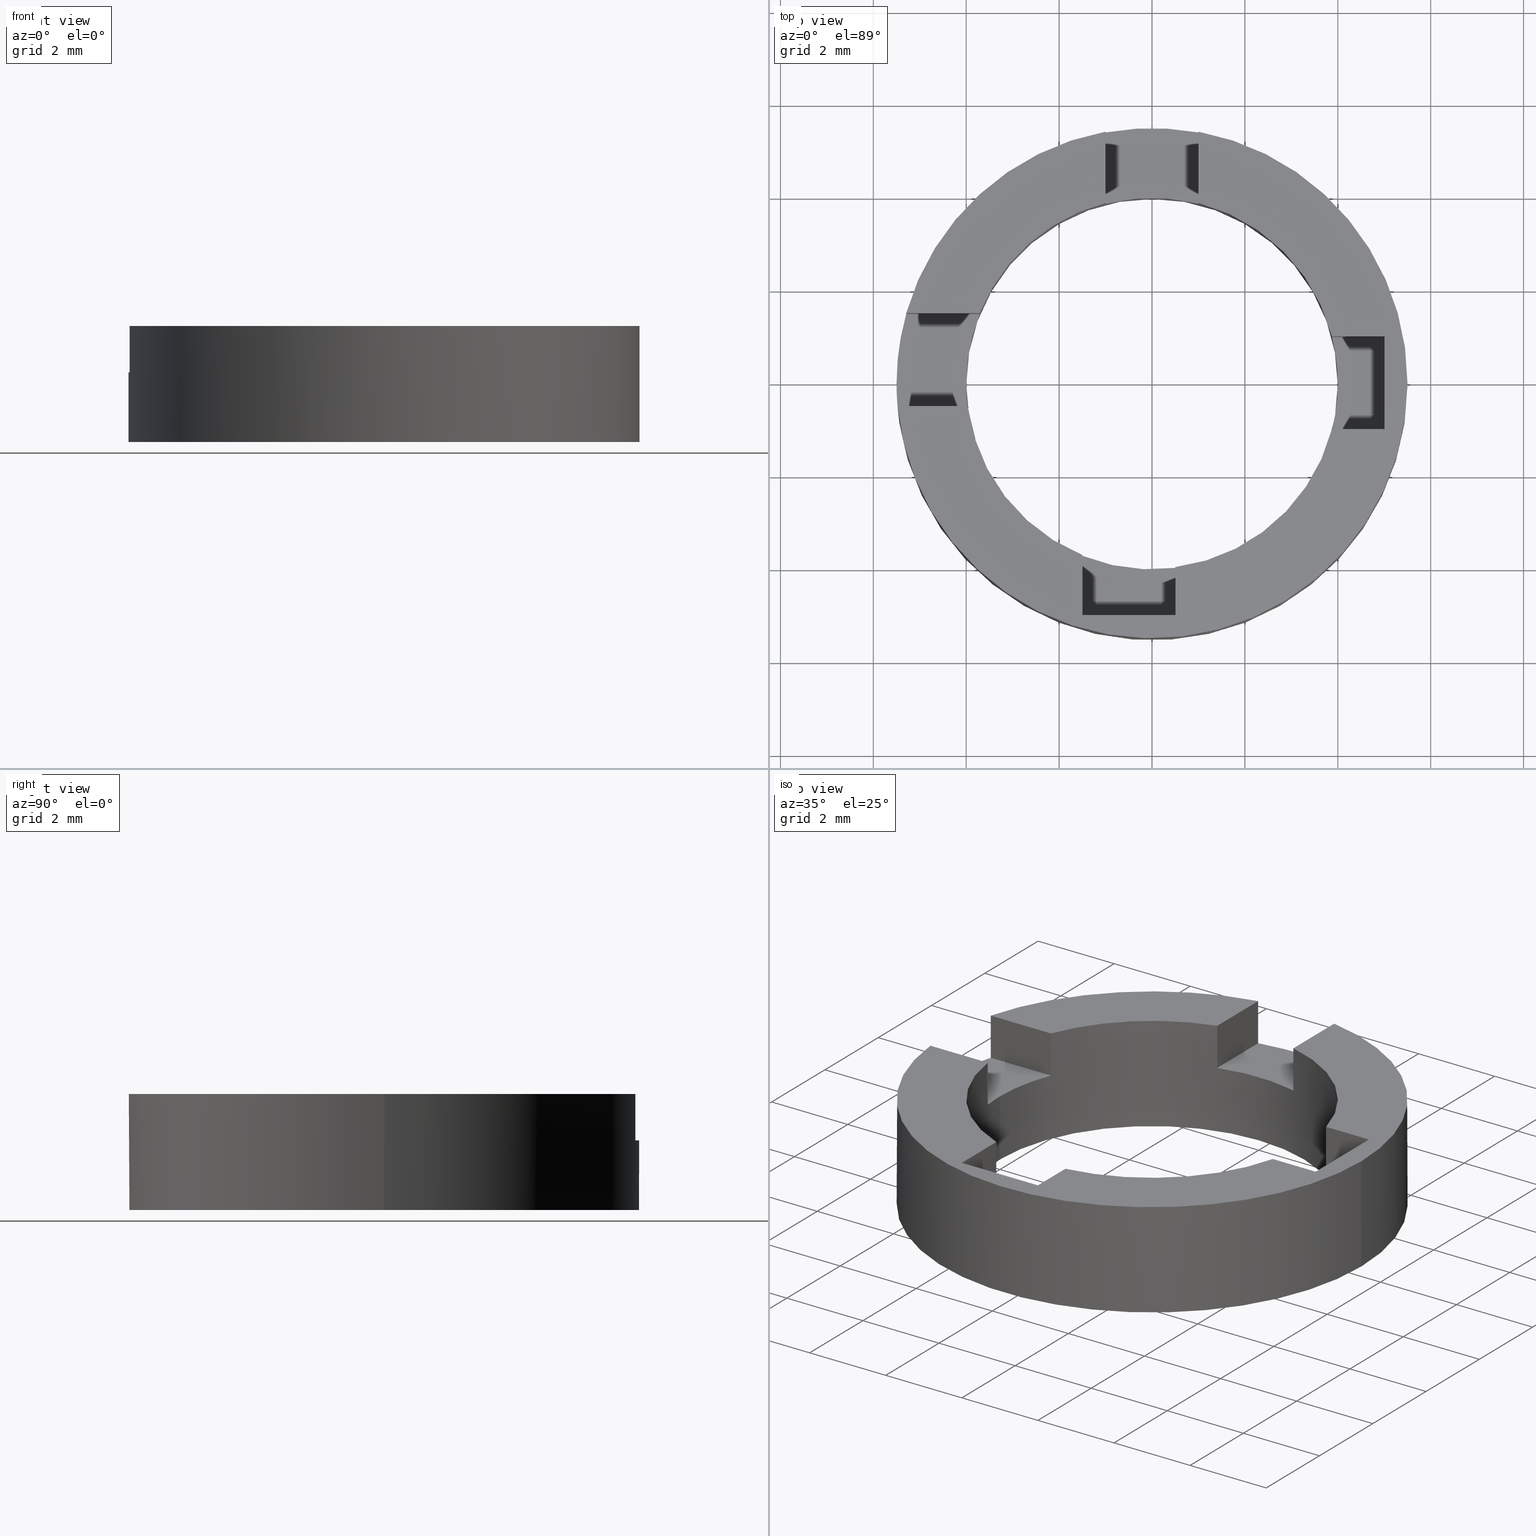
[diagram: canonical four-view strip — front | top / right | iso, engineering-drawing reading convention]
A machine part, canonical four-view strip (front | top / right | iso — engineering-drawing reading convention). The complete STEP part file that produces these views, byte-faithful:
ISO-10303-21;
HEADER;
FILE_DESCRIPTION (( 'STEP AP203' ),
    '1' );
FILE_NAME ('514027.step',
    '2024-12-26T02:30:31',
    ( 'MSI' ),
    ( '' ),
    'SwSTEP 2.0',
    'SolidWorks 2020',
    '' );
FILE_SCHEMA (( 'CONFIG_CONTROL_DESIGN' ));
ENDSEC;

DATA;
#1 = CARTESIAN_POINT ( 'NONE',  ( 0.5000000000003502754, -3.968626966596842109, 1.500000000000000000 ) ) ;
#2 = VERTEX_POINT ( 'NONE', #606 ) ;
#3 = DIRECTION ( 'NONE',  ( 1.000000000000000000, 0.000000000000000000, -0.000000000000000000 ) ) ;
#4 = DIRECTION ( 'NONE',  ( 1.000000000000000000, 0.000000000000000000, 0.000000000000000000 ) ) ;
#5 = DIRECTION ( 'NONE',  ( 0.000000000000000000, 0.000000000000000000, -1.000000000000000000 ) ) ;
#6 = VERTEX_POINT ( 'NONE', #644 ) ;
#7 = LINE ( 'NONE', #28, #11 ) ;
#8 = ORIENTED_EDGE ( 'NONE', *, *, #112, .F. ) ;
#9 = CARTESIAN_POINT ( 'NONE',  ( 2.805037895306202067, -0.9999999999999540368, 2.500000000000000000 ) ) ;
#10 = DIRECTION ( 'NONE',  ( -0.000000000000000000, -1.000000000000000000, -0.000000000000000000 ) ) ;
#11 = VECTOR ( 'NONE', #257, 1000.000000000000000 ) ;
#12 = DIRECTION ( 'NONE',  ( 0.000000000000000000, 0.000000000000000000, 1.000000000000000000 ) ) ;
#13 = LINE ( 'NONE', #204, #512 ) ;
#14 = DIRECTION ( 'NONE',  ( 0.000000000000000000, 0.000000000000000000, -1.000000000000000000 ) ) ;
#15 = EDGE_LOOP ( 'NONE', ( #304, #556, #546, #43, #218, #430, #36, #544, #551, #709, #49, #400, #559 ) ) ;
#16 = CYLINDRICAL_SURFACE ( 'NONE', #267, 4.000000000000000000 ) ;
#17 = EDGE_CURVE ( 'NONE', #548, #297, #581, .T. ) ;
#18 = VERTEX_POINT ( 'NONE', #21 ) ;
#19 = LINE ( 'NONE', #30, #244 ) ;
#20 = EDGE_CURVE ( 'NONE', #297, #740, #588, .T. ) ;
#21 = CARTESIAN_POINT ( 'NONE',  ( 5.000000000000301981, -0.9999999999999544809, 1.500000000000000000 ) ) ;
#22 = CARTESIAN_POINT ( 'NONE',  ( 1.000000000000000000, 5.408326913195983465, 2.500000000000000000 ) ) ;
#23 = ORIENTED_EDGE ( 'NONE', *, *, #351, .F. ) ;
#24 = EDGE_CURVE ( 'NONE', #232, #194, #585, .T. ) ;
#25 = EDGE_LOOP ( 'NONE', ( #473, #38, #278, #752 ) ) ;
#26 = CARTESIAN_POINT ( 'NONE',  ( 5.000000000000301981, -0.9999999999999544809, 1.500000000000000000 ) ) ;
#27 = EDGE_CURVE ( 'NONE', #549, #206, #320, .T. ) ;
#28 = CARTESIAN_POINT ( 'NONE',  ( -5.477225575051632767, -0.5000000000003046452, 2.500000000000000000 ) ) ;
#29 = AXIS2_PLACEMENT_3D ( 'NONE', #327, #406, #573 ) ;
#30 = CARTESIAN_POINT ( 'NONE',  ( -3.305037895305852125, 1.499999999999695577, 1.500000000000000000 ) ) ;
#31 = CARTESIAN_POINT ( 'NONE',  ( 3.872983346207428568, -0.9999999999999542588, 2.500000000000000000 ) ) ;
#32 = DIRECTION ( 'NONE',  ( 0.000000000000000000, 0.000000000000000000, 1.000000000000000000 ) ) ;
#33 = ADVANCED_FACE ( 'NONE', ( #322 ), #698, .F. ) ;
#34 = ORIENTED_EDGE ( 'NONE', *, *, #604, .T. ) ;
#35 = ORIENTED_EDGE ( 'NONE', *, *, #621, .F. ) ;
#36 = ORIENTED_EDGE ( 'NONE', *, *, #325, .F. ) ;
#37 = VERTEX_POINT ( 'NONE', #550 ) ;
#38 = ORIENTED_EDGE ( 'NONE', *, *, #24, .F. ) ;
#39 = AXIS2_PLACEMENT_3D ( 'NONE', #444, #376, #210 ) ;
#40 = VERTEX_POINT ( 'NONE', #608 ) ;
#41 = CARTESIAN_POINT ( 'NONE',  ( -5.477225575051632767, -0.5000000000003046452, 1.500000000000000000 ) ) ;
#42 = ORIENTED_EDGE ( 'NONE', *, *, #17, .F. ) ;
#43 = ORIENTED_EDGE ( 'NONE', *, *, #306, .F. ) ;
#44 = ORIENTED_EDGE ( 'NONE', *, *, #545, .T. ) ;
#45 = ORIENTED_EDGE ( 'NONE', *, *, #296, .F. ) ;
#46 = DIRECTION ( 'NONE',  ( -0.000000000000000000, -0.000000000000000000, -1.000000000000000000 ) ) ;
#47 = ORIENTED_EDGE ( 'NONE', *, *, #351, .T. ) ;
#48 = ORIENTED_EDGE ( 'NONE', *, *, #147, .F. ) ;
#49 = ORIENTED_EDGE ( 'NONE', *, *, #140, .F. ) ;
#50 = AXIS2_PLACEMENT_3D ( 'NONE', #529, #214, #487 ) ;
#51 = CARTESIAN_POINT ( 'NONE',  ( -3.968626966596846994, -0.5000000000003044232, 2.500000000000000000 ) ) ;
#52 = ORIENTED_EDGE ( 'NONE', *, *, #609, .F. ) ;
#53 = ORIENTED_EDGE ( 'NONE', *, *, #609, .T. ) ;
#54 = ORIENTED_EDGE ( 'NONE', *, *, #169, .T. ) ;
#55 = CARTESIAN_POINT ( 'NONE',  ( 0.000000000000000000, 0.000000000000000000, 2.500000000000000000 ) ) ;
#56 = ORIENTED_EDGE ( 'NONE', *, *, #27, .F. ) ;
#57 = CARTESIAN_POINT ( 'NONE',  ( 0.000000000000000000, 0.000000000000000000, 2.500000000000000000 ) ) ;
#58 = ORIENTED_EDGE ( 'NONE', *, *, #82, .F. ) ;
#59 = ORIENTED_EDGE ( 'NONE', *, *, #263, .F. ) ;
#60 = LINE ( 'NONE', #107, #574 ) ;
#61 = CARTESIAN_POINT ( 'NONE',  ( -1.499999999999649836, -2.805037895306156326, 1.500000000000000000 ) ) ;
#62 = DIRECTION ( 'NONE',  ( 1.975801167895978460E-16, 1.000000000000000000, 0.000000000000000000 ) ) ;
#63 = ORIENTED_EDGE ( 'NONE', *, *, #125, .T. ) ;
#64 = EDGE_LOOP ( 'NONE', ( #196, #200, #227, #283, #767, #764 ) ) ;
#65 = DIRECTION ( 'NONE',  ( -1.000000000000000000, -9.879005839479886135E-17, 0.000000000000000000 ) ) ;
#66 = DIRECTION ( 'NONE',  ( -1.000000000000000000, 0.000000000000000000, -0.000000000000000000 ) ) ;
#67 = ORIENTED_EDGE ( 'NONE', *, *, #766, .T. ) ;
#68 = APPLICATION_CONTEXT ( 'configuration controlled 3d designs of mechanical parts and assemblies' ) ;
#69 = PLANE ( 'NONE',  #538 ) ;
#70 = DIRECTION ( 'NONE',  ( -1.000000000000000000, 0.000000000000000000, 0.000000000000000000 ) ) ;
#71 = CARTESIAN_POINT ( 'NONE',  ( -1.499999999999649614, -5.000000000000257572, 2.500000000000000000 ) ) ;
#72 = PERSON_AND_ORGANIZATION_ROLE ( 'design_owner' ) ;
#73 = DIRECTION ( 'NONE',  ( 0.000000000000000000, 0.000000000000000000, 1.000000000000000000 ) ) ;
#74 = DIRECTION ( 'NONE',  ( -0.000000000000000000, -0.000000000000000000, -1.000000000000000000 ) ) ;
#76 = VECTOR ( 'NONE', #702, 1000.000000000000000 ) ;
#75 =( LENGTH_UNIT ( ) NAMED_UNIT ( * ) SI_UNIT ( .MILLI., .METRE. ) );
#77 = EDGE_CURVE ( 'NONE', #195, #307, #79, .T. ) ;
#78 = VECTOR ( 'NONE', #385, 1000.000000000000000 ) ;
#79 = LINE ( 'NONE', #655, #81 ) ;
#80 = DIRECTION ( 'NONE',  ( 0.000000000000000000, 0.000000000000000000, -1.000000000000000000 ) ) ;
#81 = VECTOR ( 'NONE', #547, 1000.000000000000000 ) ;
#82 = EDGE_CURVE ( 'NONE', #510, #440, #580, .T. ) ;
#83 = CARTESIAN_POINT ( 'NONE',  ( 0.000000000000000000, 0.000000000000000000, 1.500000000000000000 ) ) ;
#84 = ADVANCED_FACE ( 'NONE', ( #518 ), #16, .F. ) ;
#85 = DIRECTION ( 'NONE',  ( -0.000000000000000000, -0.000000000000000000, -1.000000000000000000 ) ) ;
#86 = DIRECTION ( 'NONE',  ( 1.000000000000000000, 0.000000000000000000, 0.000000000000000000 ) ) ;
#87 = APPROVAL_STATUS ( 'not_yet_approved' ) ;
#88 = DIRECTION ( 'NONE',  ( -1.000000000000000000, -1.975801167895977227E-16, 0.000000000000000000 ) ) ;
#89 = APPROVAL ( #497, 'δָ��' ) ;
#90 = ADVANCED_FACE ( 'NONE', ( #499 ), #471, .F. ) ;
#91 = DIRECTION ( 'NONE',  ( -1.000000000000000000, 1.975801167895978460E-16, -0.000000000000000000 ) ) ;
#92 = CC_DESIGN_APPROVAL ( #674, ( #751 ) ) ;
#93 = DIRECTION ( 'NONE',  ( 0.000000000000000000, -0.000000000000000000, -1.000000000000000000 ) ) ;
#94 = DESIGN_CONTEXT ( 'detailed design', #603, 'design' ) ;
#95 = AXIS2_PLACEMENT_3D ( 'NONE', #481, #611, #472 ) ;
#96 = CARTESIAN_POINT ( 'NONE',  ( 5.000000000000301981, -0.9999999999999544809, 2.500000000000000000 ) ) ;
#97 = DIRECTION ( 'NONE',  ( 1.000000000000000000, 0.000000000000000000, -0.000000000000000000 ) ) ;
#98 = DIRECTION ( 'NONE',  ( 0.000000000000000000, 1.000000000000000000, 0.000000000000000000 ) ) ;
#99 = CARTESIAN_POINT ( 'NONE',  ( -1.000000000000000000, 5.408326913195983465, 2.500000000000000000 ) ) ;
#100 = CARTESIAN_POINT ( 'NONE',  ( -5.500000000000000000, 0.000000000000000000, 1.500000000000000000 ) ) ;
#101 = DIRECTION ( 'NONE',  ( 9.879005839479886135E-17, -1.000000000000000000, 0.000000000000000000 ) ) ;
#102 = CARTESIAN_POINT ( 'NONE',  ( -1.499999999999649614, -3.708099243547972712, 2.500000000000000000 ) ) ;
#103 = AXIS2_PLACEMENT_3D ( 'NONE', #535, #337, #598 ) ;
#104 = LINE ( 'NONE', #561, #106 ) ;
#105 = EDGE_CURVE ( 'NONE', #40, #732, #772, .T. ) ;
#106 = VECTOR ( 'NONE', #657, 1000.000000000000000 ) ;
#107 = CARTESIAN_POINT ( 'NONE',  ( 3.872983346207404587, 1.000000000000045741, 2.500000000000000000 ) ) ;
#108 = DIRECTION ( 'NONE',  ( 0.000000000000000000, -0.000000000000000000, -1.000000000000000000 ) ) ;
#109 = VECTOR ( 'NONE', #447, 1000.000000000000000 ) ;
#110 = CARTESIAN_POINT ( 'NONE',  ( 3.872983346207404587, 1.000000000000045741, 1.500000000000000000 ) ) ;
#111 = LINE ( 'NONE', #284, #356 ) ;
#112 = EDGE_CURVE ( 'NONE', #243, #486, #7, .T. ) ;
#113 = FACE_OUTER_BOUND ( 'NONE', #526, .T. ) ;
#114 = APPLICATION_PROTOCOL_DEFINITION ( 'international standard', 'config_control_design', 1994, #603 ) ;
#115 = EDGE_CURVE ( 'NONE', #508, #768, #252, .T. ) ;
#116 = LINE ( 'NONE', #592, #117 ) ;
#117 = VECTOR ( 'NONE', #643, 1000.000000000000000 ) ;
#118 = EDGE_CURVE ( 'NONE', #757, #2, #520, .T. ) ;
#119 = APPROVAL ( #612, 'δָ��' ) ;
#120 = DIRECTION ( 'NONE',  ( 1.000000000000000000, 0.000000000000000000, 0.000000000000000000 ) ) ;
#121 = DIRECTION ( 'NONE',  ( 1.000000000000000000, -1.975801167895978706E-16, 0.000000000000000000 ) ) ;
#122 = CARTESIAN_POINT ( 'NONE',  ( -3.305037895305852125, 1.499999999999695577, 2.500000000000000000 ) ) ;
#123 = DIRECTION ( 'NONE',  ( -0.000000000000000000, -1.000000000000000000, -0.000000000000000000 ) ) ;
#124 = DIRECTION ( 'NONE',  ( -1.975801167895978706E-16, -1.000000000000000000, 0.000000000000000000 ) ) ;
#125 = EDGE_CURVE ( 'NONE', #773, #2, #507, .T. ) ;
#126 = PRODUCT_DEFINITION_SHAPE ( 'NONE', 'NONE',  #751 ) ;
#127 = EDGE_CURVE ( 'NONE', #232, #215, #514, .T. ) ;
#128 = CC_DESIGN_DATE_AND_TIME_ASSIGNMENT ( #492, #235, ( #751 ) ) ;
#129 = DIRECTION ( 'NONE',  ( -0.000000000000000000, -0.000000000000000000, -1.000000000000000000 ) ) ;
#130 = AXIS2_PLACEMENT_3D ( 'NONE', #309, #359, #120 ) ;
#131 = EDGE_CURVE ( 'NONE', #464, #440, #246, .T. ) ;
#132 = EDGE_CURVE ( 'NONE', #510, #37, #19, .T. ) ;
#133 = CARTESIAN_POINT ( 'NONE',  ( 5.500000000000000000, 6.735557395310442023E-16, 2.500000000000000000 ) ) ;
#134 = PLANE ( 'NONE',  #318 ) ;
#135 = CARTESIAN_POINT ( 'NONE',  ( 1.000000000000000000, 3.305037895305898310, 1.500000000000000000 ) ) ;
#136 = DIRECTION ( 'NONE',  ( 0.000000000000000000, 0.000000000000000000, 1.000000000000000000 ) ) ;
#137 = EDGE_CURVE ( 'NONE', #516, #18, #779, .T. ) ;
#138 = CARTESIAN_POINT ( 'NONE',  ( -1.000000000000000000, 3.872983346207417021, 2.500000000000000000 ) ) ;
#139 = CARTESIAN_POINT ( 'NONE',  ( 0.5000000000003504974, -5.000000000000257572, 1.500000000000000000 ) ) ;
#140 = EDGE_CURVE ( 'NONE', #243, #190, #13, .T. ) ;
#141 = DIRECTION ( 'NONE',  ( 1.000000000000000000, 0.000000000000000000, 0.000000000000000000 ) ) ;
#142 = DIRECTION ( 'NONE',  ( -1.481850875921982612E-16, 1.000000000000000000, -0.000000000000000000 ) ) ;
#143 = CARTESIAN_POINT ( 'NONE',  ( -3.305037895305852125, 1.499999999999695577, 1.500000000000000000 ) ) ;
#144 = PLANE ( 'NONE',  #769 ) ;
#145 = CARTESIAN_POINT ( 'NONE',  ( 1.000000000000000000, 5.408326913195983465, 2.500000000000000000 ) ) ;
#146 = CARTESIAN_POINT ( 'NONE',  ( 5.000000000000301981, 1.000000000000045519, 1.500000000000000000 ) ) ;
#147 = EDGE_CURVE ( 'NONE', #768, #426, #247, .T. ) ;
#148 = CARTESIAN_POINT ( 'NONE',  ( 5.000000000000301981, 1.000000000000045519, 1.500000000000000000 ) ) ;
#149 = APPROVAL_ROLE ( '' ) ;
#150 = PERSON ( 'δָ��', 'δָ��', 'δָ��', ('δָ��'), ('δָ��'), ('δָ��') ) ;
#151 = CARTESIAN_POINT ( 'NONE',  ( 0.000000000000000000, 0.000000000000000000, 2.500000000000000000 ) ) ;
#152 = ADVANCED_FACE ( 'NONE', ( #441 ), #286, .F. ) ;
#153 = LINE ( 'NONE', #51, #689 ) ;
#154 = ORIENTED_EDGE ( 'NONE', *, *, #118, .T. ) ;
#155 = FACE_OUTER_BOUND ( 'NONE', #761, .T. ) ;
#156 = LINE ( 'NONE', #650, #692 ) ;
#157 = PLANE ( 'NONE',  #299 ) ;
#158 = VECTOR ( 'NONE', #101, 1000.000000000000000 ) ;
#159 = LINE ( 'NONE', #139, #695 ) ;
#160 = AXIS2_PLACEMENT_3D ( 'NONE', #352, #108, #774 ) ;
#161 = LINE ( 'NONE', #669, #174 ) ;
#162 = DIRECTION ( 'NONE',  ( 1.000000000000000000, 0.000000000000000000, 0.000000000000000000 ) ) ;
#163 = CIRCLE ( 'NONE', #652, 5.500000000000000000 ) ;
#164 = VECTOR ( 'NONE', #737, 1000.000000000000000 ) ;
#165 = VECTOR ( 'NONE', #98, 1000.000000000000000 ) ;
#166 = ORIENTED_EDGE ( 'NONE', *, *, #342, .T. ) ;
#167 = VECTOR ( 'NONE', #527, 1000.000000000000000 ) ;
#168 = LINE ( 'NONE', #262, #713 ) ;
#169 = EDGE_CURVE ( 'NONE', #486, #548, #445, .T. ) ;
#170 = FACE_OUTER_BOUND ( 'NONE', #279, .T. ) ;
#171 = FACE_OUTER_BOUND ( 'NONE', #753, .T. ) ;
#172 = EDGE_CURVE ( 'NONE', #464, #501, #456, .T. ) ;
#173 = ORIENTED_EDGE ( 'NONE', *, *, #27, .T. ) ;
#174 = VECTOR ( 'NONE', #675, 1000.000000000000000 ) ;
#175 = AXIS2_PLACEMENT_3D ( 'NONE', #57, #335, #97 ) ;
#176 = ORIENTED_EDGE ( 'NONE', *, *, #17, .T. ) ;
#177 = VECTOR ( 'NONE', #374, 1000.000000000000000 ) ;
#178 = ORIENTED_EDGE ( 'NONE', *, *, #269, .T. ) ;
#179 = VECTOR ( 'NONE', #32, 1000.000000000000000 ) ;
#180 = CYLINDRICAL_SURFACE ( 'NONE', #343, 4.000000000000000000 ) ;
#181 = ORIENTED_EDGE ( 'NONE', *, *, #238, .F. ) ;
#182 = LINE ( 'NONE', #122, #188 ) ;
#183 = LINE ( 'NONE', #557, #437 ) ;
#184 = VECTOR ( 'NONE', #338, 1000.000000000000000 ) ;
#185 = PLANE ( 'NONE',  #336 ) ;
#186 = FACE_OUTER_BOUND ( 'NONE', #680, .T. ) ;
#187 = LINE ( 'NONE', #266, #167 ) ;
#188 = VECTOR ( 'NONE', #88, 1000.000000000000000 ) ;
#189 = ORGANIZATION ( 'δָ��', 'δָ��', '' ) ;
#190 = VERTEX_POINT ( 'NONE', #423 ) ;
#191 = CALENDAR_DATE ( 2024, 26, 12 ) ;
#192 = DIRECTION ( 'NONE',  ( 0.000000000000000000, -1.000000000000000000, 0.000000000000000000 ) ) ;
#193 = EDGE_LOOP ( 'NONE', ( #427, #572, #760, #303 ) ) ;
#194 = VERTEX_POINT ( 'NONE', #641 ) ;
#195 = VERTEX_POINT ( 'NONE', #647 ) ;
#196 = ORIENTED_EDGE ( 'NONE', *, *, #169, .F. ) ;
#197 = ORIENTED_EDGE ( 'NONE', *, *, #583, .T. ) ;
#198 = CARTESIAN_POINT ( 'NONE',  ( -3.708099243547954504, 1.499999999999695577, 2.500000000000000000 ) ) ;
#199 = VECTOR ( 'NONE', #142, 1000.000000000000000 ) ;
#200 = ORIENTED_EDGE ( 'NONE', *, *, #296, .T. ) ;
#201 = CALENDAR_DATE ( 2024, 26, 12 ) ;
#202 = DIRECTION ( 'NONE',  ( -0.000000000000000000, -0.000000000000000000, -1.000000000000000000 ) ) ;
#203 = EDGE_LOOP ( 'NONE', ( #468, #723, #744, #714 ) ) ;
#204 = CARTESIAN_POINT ( 'NONE',  ( -3.305037895305851681, -0.5000000000003044232, 2.500000000000000000 ) ) ;
#205 = ORIENTED_EDGE ( 'NONE', *, *, #395, .T. ) ;
#206 = VERTEX_POINT ( 'NONE', #341 ) ;
#207 = LOCAL_TIME ( 10, 30, 31.00000000000000000, #452 ) ;
#208 = ORIENTED_EDGE ( 'NONE', *, *, #77, .F. ) ;
#209 = APPROVAL_DATE_TIME ( #228, #119 ) ;
#210 = DIRECTION ( 'NONE',  ( 1.000000000000000000, 0.000000000000000000, 0.000000000000000000 ) ) ;
#211 = PLANE ( 'NONE',  #346 ) ;
#212 = VERTEX_POINT ( 'NONE', #451 ) ;
#213 = COORDINATED_UNIVERSAL_TIME_OFFSET ( 8, 0, .AHEAD. ) ;
#214 = DIRECTION ( 'NONE',  ( 1.481850875921982612E-16, -1.000000000000000000, 0.000000000000000000 ) ) ;
#215 = VERTEX_POINT ( 'NONE', #110 ) ;
#216 = EDGE_CURVE ( 'NONE', #215, #448, #459, .T. ) ;
#217 = LOCAL_TIME ( 10, 30, 31.00000000000000000, #466 ) ;
#218 = ORIENTED_EDGE ( 'NONE', *, *, #620, .F. ) ;
#219 = AXIS2_PLACEMENT_3D ( 'NONE', #540, #220, #70 ) ;
#220 = DIRECTION ( 'NONE',  ( 0.000000000000000000, -0.000000000000000000, -1.000000000000000000 ) ) ;
#221 = PLANE ( 'NONE',  #653 ) ;
#222 = ORIENTED_EDGE ( 'NONE', *, *, #329, .F. ) ;
#223 = EDGE_CURVE ( 'NONE', #448, #516, #463, .T. ) ;
#224 = DATE_AND_TIME ( #763, #207 ) ;
#225 = ORIENTED_EDGE ( 'NONE', *, *, #672, .T. ) ;
#226 = PLANE ( 'NONE',  #660 ) ;
#227 = ORIENTED_EDGE ( 'NONE', *, *, #621, .T. ) ;
#228 = DATE_AND_TIME ( #201, #741 ) ;
#229 = CARTESIAN_POINT ( 'NONE',  ( 2.805037895306202067, -0.9999999999999540368, 1.500000000000000000 ) ) ;
#230 = VECTOR ( 'NONE', #640, 1000.000000000000000 ) ;
#231 = ORIENTED_EDGE ( 'NONE', *, *, #216, .T. ) ;
#232 = VERTEX_POINT ( 'NONE', #146 ) ;
#233 = DATE_AND_TIME ( #191, #217 ) ;
#234 = EDGE_LOOP ( 'NONE', ( #562, #488, #208, #455 ) ) ;
#235 = DATE_TIME_ROLE ( 'creation_date' ) ;
#236 = VECTOR ( 'NONE', #566, 1000.000000000000000 ) ;
#237 = CLOSED_SHELL ( 'NONE', ( #84, #631, #363, #638, #321, #386, #727, #616, #765, #313, #498, #525, #152, #707, #33, #90, #248, #358, #258, #587, #331 ) ) ;
#238 = EDGE_CURVE ( 'NONE', #553, #508, #438, .T. ) ;
#239 = AXIS2_PLACEMENT_3D ( 'NONE', #671, #12, #4 ) ;
#240 = DIRECTION ( 'NONE',  ( 0.000000000000000000, 0.000000000000000000, 1.000000000000000000 ) ) ;
#241 = ORIENTED_EDGE ( 'NONE', *, *, #558, .F. ) ;
#242 = CARTESIAN_POINT ( 'NONE',  ( 1.000000000000000000, 3.872983346207417021, 2.500000000000000000 ) ) ;
#243 = VERTEX_POINT ( 'NONE', #416 ) ;
#244 = VECTOR ( 'NONE', #634, 1000.000000000000000 ) ;
#245 = ORIENTED_EDGE ( 'NONE', *, *, #131, .T. ) ;
#246 = CIRCLE ( 'NONE', #326, 4.000000000000000000 ) ;
#247 = LINE ( 'NONE', #102, #710 ) ;
#248 = ADVANCED_FACE ( 'NONE', ( #734 ), #69, .F. ) ;
#249 = EDGE_LOOP ( 'NONE', ( #450, #706, #45, #8 ) ) ;
#250 = ORIENTED_EDGE ( 'NONE', *, *, #127, .T. ) ;
#251 = DIRECTION ( 'NONE',  ( 0.000000000000000000, 0.000000000000000000, 1.000000000000000000 ) ) ;
#252 = CIRCLE ( 'NONE', #506, 4.000000000000000000 ) ;
#253 = ORIENTED_EDGE ( 'NONE', *, *, #172, .F. ) ;
#254 = VERTEX_POINT ( 'NONE', #673 ) ;
#255 = VERTEX_POINT ( 'NONE', #99 ) ;
#256 = SECURITY_CLASSIFICATION ( '', '', #731 ) ;
#257 = DIRECTION ( 'NONE',  ( -0.000000000000000000, -0.000000000000000000, -1.000000000000000000 ) ) ;
#258 = ADVANCED_FACE ( 'NONE', ( #465 ), #157, .F. ) ;
#259 = ORIENTED_EDGE ( 'NONE', *, *, #260, .F. ) ;
#260 = EDGE_CURVE ( 'NONE', #37, #504, #715, .T. ) ;
#261 = ORIENTED_EDGE ( 'NONE', *, *, #342, .F. ) ;
#262 = CARTESIAN_POINT ( 'NONE',  ( -4.000000000000000000, 0.000000000000000000, 2.500000000000000000 ) ) ;
#263 = EDGE_CURVE ( 'NONE', #440, #504, #182, .T. ) ;
#264 = PERSON_AND_ORGANIZATION_ROLE ( 'classification_officer' ) ;
#265 = CARTESIAN_POINT ( 'NONE',  ( 0.5000000000003504974, -5.000000000000257572, 1.500000000000000000 ) ) ;
#266 = CARTESIAN_POINT ( 'NONE',  ( 3.872983346207428568, -0.9999999999999542588, 2.500000000000000000 ) ) ;
#267 = AXIS2_PLACEMENT_3D ( 'NONE', #610, #85, #613 ) ;
#268 = CARTESIAN_POINT ( 'NONE',  ( 3.872983346207428568, -0.9999999999999542588, 1.500000000000000000 ) ) ;
#269 = EDGE_CURVE ( 'NONE', #190, #426, #434, .T. ) ;
#270 = ORIENTED_EDGE ( 'NONE', *, *, #722, .T. ) ;
#271 = AXIS2_PLACEMENT_3D ( 'NONE', #324, #632, #579 ) ;
#272 = ORIENTED_EDGE ( 'NONE', *, *, #758, .T. ) ;
#273 = ORIENTED_EDGE ( 'NONE', *, *, #294, .T. ) ;
#274 = DIRECTION ( 'NONE',  ( 9.879005839479886135E-17, -1.000000000000000000, 0.000000000000000000 ) ) ;
#275 = EDGE_LOOP ( 'NONE', ( #424, #154, #225, #555 ) ) ;
#276 = DIRECTION ( 'NONE',  ( -0.000000000000000000, -0.000000000000000000, -1.000000000000000000 ) ) ;
#277 = DIRECTION ( 'NONE',  ( -1.000000000000000000, 0.000000000000000000, 0.000000000000000000 ) ) ;
#278 = ORIENTED_EDGE ( 'NONE', *, *, #604, .F. ) ;
#279 = EDGE_LOOP ( 'NONE', ( #775, #521, #476, #259 ) ) ;
#280 = CARTESIAN_POINT ( 'NONE',  ( 0.5000000000003501643, -2.805037895306155882, 1.500000000000000000 ) ) ;
#281 = EDGE_LOOP ( 'NONE', ( #493, #52 ) ) ;
#282 = DIRECTION ( 'NONE',  ( 1.000000000000000000, -0.000000000000000000, 0.000000000000000000 ) ) ;
#283 = ORIENTED_EDGE ( 'NONE', *, *, #615, .T. ) ;
#284 = CARTESIAN_POINT ( 'NONE',  ( -1.000000000000000000, 3.305037895305897422, 2.500000000000000000 ) ) ;
#285 = APPLICATION_PROTOCOL_DEFINITION ( 'international standard', 'config_control_design', 1994, #68 ) ;
#286 = PLANE ( 'NONE',  #364 ) ;
#287 = ORIENTED_EDGE ( 'NONE', *, *, #131, .F. ) ;
#288 = ORIENTED_EDGE ( 'NONE', *, *, #115, .F. ) ;
#289 = EDGE_LOOP ( 'NONE', ( #397, #173 ) ) ;
#290 = DIRECTION ( 'NONE',  ( -1.975801167895977227E-16, 1.000000000000000000, 0.000000000000000000 ) ) ;
#291 = EDGE_LOOP ( 'NONE', ( #742, #736, #576, #728 ) ) ;
#292 = CARTESIAN_POINT ( 'NONE',  ( 0.000000000000000000, 0.000000000000000000, 1.500000000000000000 ) ) ;
#293 = ORIENTED_EDGE ( 'NONE', *, *, #766, .F. ) ;
#294 = EDGE_CURVE ( 'NONE', #255, #504, #636, .T. ) ;
#295 = DIRECTION ( 'NONE',  ( -1.481850875921982612E-16, 1.000000000000000000, 0.000000000000000000 ) ) ;
#296 = EDGE_CURVE ( 'NONE', #486, #212, #365, .T. ) ;
#297 = VERTEX_POINT ( 'NONE', #554 ) ;
#298 = ORIENTED_EDGE ( 'NONE', *, *, #369, .F. ) ;
#299 = AXIS2_PLACEMENT_3D ( 'NONE', #718, #614, #251 ) ;
#300 = ORIENTED_EDGE ( 'NONE', *, *, #216, .F. ) ;
#301 = ORIENTED_EDGE ( 'NONE', *, *, #260, .T. ) ;
#302 = ORIENTED_EDGE ( 'NONE', *, *, #686, .F. ) ;
#303 = ORIENTED_EDGE ( 'NONE', *, *, #545, .F. ) ;
#304 = ORIENTED_EDGE ( 'NONE', *, *, #672, .F. ) ;
#305 = CARTESIAN_POINT ( 'NONE',  ( -5.500000000000000000, 0.000000000000000000, 2.500000000000000000 ) ) ;
#306 = EDGE_CURVE ( 'NONE', #575, #194, #104, .T. ) ;
#307 = VERTEX_POINT ( 'NONE', #71 ) ;
#308 = EDGE_LOOP ( 'NONE', ( #67, #181, #738, #747 ) ) ;
#309 = CARTESIAN_POINT ( 'NONE',  ( 0.000000000000000000, 0.000000000000000000, 2.500000000000000000 ) ) ;
#310 = DIRECTION ( 'NONE',  ( 9.879005839479886135E-17, -1.000000000000000000, 0.000000000000000000 ) ) ;
#311 = CARTESIAN_POINT ( 'NONE',  ( -3.708099243547954504, 1.499999999999695577, 2.500000000000000000 ) ) ;
#312 = CARTESIAN_POINT ( 'NONE',  ( 0.000000000000000000, 0.000000000000000000, 2.500000000000000000 ) ) ;
#313 = ADVANCED_FACE ( 'NONE', ( #627 ), #221, .F. ) ;
#314 = ORIENTED_EDGE ( 'NONE', *, *, #371, .F. ) ;
#315 = PERSON_AND_ORGANIZATION_ROLE ( 'creator' ) ;
#316 = EDGE_CURVE ( 'NONE', #195, #553, #116, .T. ) ;
#317 = DIRECTION ( 'NONE',  ( -1.000000000000000000, 0.000000000000000000, 0.000000000000000000 ) ) ;
#318 = AXIS2_PLACEMENT_3D ( 'NONE', #665, #192, #93 ) ;
#319 = AXIS2_PLACEMENT_3D ( 'NONE', #312, #354, #86 ) ;
#320 = CIRCLE ( 'NONE', #626, 4.000000000000000000 ) ;
#321 = ADVANCED_FACE ( 'NONE', ( #355, #629 ), #211, .F. ) ;
#322 = FACE_OUTER_BOUND ( 'NONE', #25, .T. ) ;
#323 = VECTOR ( 'NONE', #74, 1000.000000000000000 ) ;
#324 = CARTESIAN_POINT ( 'NONE',  ( 0.000000000000000000, 0.000000000000000000, 0.000000000000000000 ) ) ;
#325 = EDGE_CURVE ( 'NONE', #475, #6, #625, .T. ) ;
#326 = AXIS2_PLACEMENT_3D ( 'NONE', #151, #366, #509 ) ;
#327 = CARTESIAN_POINT ( 'NONE',  ( 0.000000000000000000, 0.000000000000000000, 2.500000000000000000 ) ) ;
#328 = CARTESIAN_POINT ( 'NONE',  ( -1.499999999999649614, -5.000000000000257572, 2.500000000000000000 ) ) ;
#329 = EDGE_CURVE ( 'NONE', #255, #464, #111, .T. ) ;
#330 = DIRECTION ( 'NONE',  ( -0.000000000000000000, -0.000000000000000000, -1.000000000000000000 ) ) ;
#331 = ADVANCED_FACE ( 'NONE', ( #113 ), #339, .T. ) ;
#332 = PLANE ( 'NONE',  #746 ) ;
#333 = DIRECTION ( 'NONE',  ( -1.000000000000000000, 0.000000000000000000, 0.000000000000000000 ) ) ;
#334 = DIRECTION ( 'NONE',  ( 1.000000000000000000, 0.000000000000000000, 0.000000000000000000 ) ) ;
#335 = DIRECTION ( 'NONE',  ( 0.000000000000000000, 0.000000000000000000, 1.000000000000000000 ) ) ;
#336 = AXIS2_PLACEMENT_3D ( 'NONE', #135, #282, #599 ) ;
#337 = DIRECTION ( 'NONE',  ( 0.000000000000000000, -0.000000000000000000, -1.000000000000000000 ) ) ;
#338 = DIRECTION ( 'NONE',  ( 0.000000000000000000, 1.000000000000000000, 0.000000000000000000 ) ) ;
#339 = PLANE ( 'NONE',  #649 ) ;
#340 = CARTESIAN_POINT ( 'NONE',  ( -1.499999999999649614, -3.708099243547972712, 1.500000000000000000 ) ) ;
#341 = CARTESIAN_POINT ( 'NONE',  ( -4.000000000000000000, 0.000000000000000000, 0.000000000000000000 ) ) ;
#342 = EDGE_CURVE ( 'NONE', #757, #501, #360, .T. ) ;
#343 = AXIS2_PLACEMENT_3D ( 'NONE', #381, #202, #277 ) ;
#344 =( NAMED_UNIT ( * ) SI_UNIT ( $, .STERADIAN. ) SOLID_ANGLE_UNIT ( ) );
#345 = AXIS2_PLACEMENT_3D ( 'NONE', #688, #5, #370 ) ;
#346 = AXIS2_PLACEMENT_3D ( 'NONE', #633, #380, #3 ) ;
#347 = CARTESIAN_POINT ( 'NONE',  ( 0.5000000000003501643, -2.805037895306155882, 1.500000000000000000 ) ) ;
#348 = DIRECTION ( 'NONE',  ( -1.000000000000000000, 0.000000000000000000, 0.000000000000000000 ) ) ;
#349 = CARTESIAN_POINT ( 'NONE',  ( 0.000000000000000000, 0.000000000000000000, 0.000000000000000000 ) ) ;
#350 = CARTESIAN_POINT ( 'NONE',  ( 2.805037895306202067, -0.9999999999999540368, 1.500000000000000000 ) ) ;
#351 = EDGE_CURVE ( 'NONE', #773, #215, #60, .T. ) ;
#352 = CARTESIAN_POINT ( 'NONE',  ( 0.000000000000000000, 0.000000000000000000, 1.500000000000000000 ) ) ;
#353 = AXIS2_PLACEMENT_3D ( 'NONE', #143, #290, #532 ) ;
#354 = DIRECTION ( 'NONE',  ( 0.000000000000000000, 0.000000000000000000, 1.000000000000000000 ) ) ;
#355 = FACE_OUTER_BOUND ( 'NONE', #281, .T. ) ;
#356 = VECTOR ( 'NONE', #10, 1000.000000000000000 ) ;
#357 = CARTESIAN_POINT ( 'NONE',  ( 0.000000000000000000, 0.000000000000000000, 2.500000000000000000 ) ) ;
#358 = ADVANCED_FACE ( 'NONE', ( #697 ), #144, .F. ) ;
#359 = DIRECTION ( 'NONE',  ( 0.000000000000000000, 0.000000000000000000, 1.000000000000000000 ) ) ;
#360 = CIRCLE ( 'NONE', #699, 4.000000000000000000 ) ;
#361 = PERSON_AND_ORGANIZATION_ROLE ( 'design_supplier' ) ;
#362 = CARTESIAN_POINT ( 'NONE',  ( 4.000000000000000000, 4.898587196589412829E-16, 2.500000000000000000 ) ) ;
#363 = ADVANCED_FACE ( 'NONE', ( #171 ), #670, .T. ) ;
#364 = AXIS2_PLACEMENT_3D ( 'NONE', #280, #375, #295 ) ;
#365 = LINE ( 'NONE', #712, #630 ) ;
#366 = DIRECTION ( 'NONE',  ( 0.000000000000000000, 0.000000000000000000, 1.000000000000000000 ) ) ;
#367 = DIRECTION ( 'NONE',  ( 0.000000000000000000, 0.000000000000000000, 1.000000000000000000 ) ) ;
#368 = CARTESIAN_POINT ( 'NONE',  ( -1.000000000000000000, 3.872983346207417021, 1.500000000000000000 ) ) ;
#369 = EDGE_CURVE ( 'NONE', #206, #549, #700, .T. ) ;
#370 = DIRECTION ( 'NONE',  ( -1.000000000000000000, 0.000000000000000000, 0.000000000000000000 ) ) ;
#371 = EDGE_CURVE ( 'NONE', #516, #719, #187, .T. ) ;
#372 = DIRECTION ( 'NONE',  ( 1.000000000000000000, 0.000000000000000000, 0.000000000000000000 ) ) ;
#373 = DIRECTION ( 'NONE',  ( 0.000000000000000000, 0.000000000000000000, -1.000000000000000000 ) ) ;
#374 = DIRECTION ( 'NONE',  ( 0.000000000000000000, 0.000000000000000000, 1.000000000000000000 ) ) ;
#375 = DIRECTION ( 'NONE',  ( 1.000000000000000000, 1.481850875921982612E-16, 0.000000000000000000 ) ) ;
#376 = DIRECTION ( 'NONE',  ( 0.000000000000000000, 0.000000000000000000, 1.000000000000000000 ) ) ;
#377 = MECHANICAL_CONTEXT ( 'NONE', #68, 'mechanical' ) ;
#378 = CC_DESIGN_PERSON_AND_ORGANIZATION_ASSIGNMENT ( #454, #72, ( #605 ) ) ;
#379 = DIRECTION ( 'NONE',  ( 0.000000000000000000, -0.000000000000000000, -1.000000000000000000 ) ) ;
#380 = DIRECTION ( 'NONE',  ( 0.000000000000000000, 0.000000000000000000, 1.000000000000000000 ) ) ;
#381 = CARTESIAN_POINT ( 'NONE',  ( 0.000000000000000000, 0.000000000000000000, 2.500000000000000000 ) ) ;
#382 = DIRECTION ( 'NONE',  ( -0.000000000000000000, -0.000000000000000000, -1.000000000000000000 ) ) ;
#383 = AXIS2_PLACEMENT_3D ( 'NONE', #350, #124, #121 ) ;
#384 = DIRECTION ( 'NONE',  ( 0.000000000000000000, 0.000000000000000000, 1.000000000000000000 ) ) ;
#385 = DIRECTION ( 'NONE',  ( -0.000000000000000000, -0.000000000000000000, 1.000000000000000000 ) ) ;
#386 = ADVANCED_FACE ( 'NONE', ( #186 ), #677, .T. ) ;
#387 = EDGE_CURVE ( 'NONE', #190, #212, #153, .T. ) ;
#388 = EDGE_CURVE ( 'NONE', #6, #719, #711, .T. ) ;
#389 = AXIS2_PLACEMENT_3D ( 'NONE', #543, #330, #333 ) ;
#390 = CARTESIAN_POINT ( 'NONE',  ( 0.000000000000000000, 0.000000000000000000, 1.500000000000000000 ) ) ;
#391 = CARTESIAN_POINT ( 'NONE',  ( -5.291502622129266697, 1.499999999999695133, 2.500000000000000000 ) ) ;
#392 = EDGE_CURVE ( 'NONE', #307, #475, #405, .T. ) ;
#393 = DIRECTION ( 'NONE',  ( 1.000000000000000000, 0.000000000000000000, -0.000000000000000000 ) ) ;
#394 = CARTESIAN_POINT ( 'NONE',  ( 2.805037895306201623, 1.000000000000045963, 1.500000000000000000 ) ) ;
#395 = EDGE_CURVE ( 'NONE', #194, #773, #402, .T. ) ;
#396 = DIRECTION ( 'NONE',  ( -0.000000000000000000, -0.000000000000000000, -1.000000000000000000 ) ) ;
#397 = ORIENTED_EDGE ( 'NONE', *, *, #369, .T. ) ;
#398 = LINE ( 'NONE', #362, #417 ) ;
#399 = DIRECTION ( 'NONE',  ( -0.000000000000000000, -0.000000000000000000, -1.000000000000000000 ) ) ;
#400 = ORIENTED_EDGE ( 'NONE', *, *, #558, .T. ) ;
#401 = VECTOR ( 'NONE', #129, 1000.000000000000000 ) ;
#402 = LINE ( 'NONE', #591, #442 ) ;
#403 = LINE ( 'NONE', #61, #158 ) ;
#404 = PRODUCT_RELATED_PRODUCT_CATEGORY ( 'detail', '', ( #605 ) ) ;
#405 = LINE ( 'NONE', #328, #687 ) ;
#406 = DIRECTION ( 'NONE',  ( 0.000000000000000000, 0.000000000000000000, 1.000000000000000000 ) ) ;
#407 = LINE ( 'NONE', #524, #164 ) ;
#408 = CC_DESIGN_PERSON_AND_ORGANIZATION_ASSIGNMENT ( #735, #479, ( #751 ) ) ;
#409 = LINE ( 'NONE', #582, #401 ) ;
#410 = LINE ( 'NONE', #436, #165 ) ;
#411 = CIRCLE ( 'NONE', #160, 5.500000000000000000 ) ;
#412 = CARTESIAN_POINT ( 'NONE',  ( -1.499999999999649836, -2.805037895306156326, 1.500000000000000000 ) ) ;
#413 = VECTOR ( 'NONE', #595, 1000.000000000000000 ) ;
#414 = ORIENTED_EDGE ( 'NONE', *, *, #20, .T. ) ;
#415 = FACE_OUTER_BOUND ( 'NONE', #275, .T. ) ;
#416 = CARTESIAN_POINT ( 'NONE',  ( -5.477225575051632767, -0.5000000000003046452, 2.500000000000000000 ) ) ;
#417 = VECTOR ( 'NONE', #399, 1000.000000000000000 ) ;
#418 = LINE ( 'NONE', #9, #413 ) ;
#419 = CARTESIAN_POINT ( 'NONE',  ( -1.000000000000000000, 3.872983346207417021, 2.500000000000000000 ) ) ;
#420 = FACE_OUTER_BOUND ( 'NONE', #203, .T. ) ;
#421 = DIRECTION ( 'NONE',  ( -1.000000000000000000, 0.000000000000000000, -0.000000000000000000 ) ) ;
#422 = CARTESIAN_POINT ( 'NONE',  ( 5.500000000000000000, 6.735557395310442023E-16, 0.000000000000000000 ) ) ;
#423 = CARTESIAN_POINT ( 'NONE',  ( -3.968626966596846994, -0.5000000000003044232, 2.500000000000000000 ) ) ;
#424 = ORIENTED_EDGE ( 'NONE', *, *, #483, .F. ) ;
#425 = VECTOR ( 'NONE', #522, 1000.000000000000000 ) ;
#426 = VERTEX_POINT ( 'NONE', #637 ) ;
#427 = ORIENTED_EDGE ( 'NONE', *, *, #329, .T. ) ;
#428 = AXIS2_PLACEMENT_3D ( 'NONE', #542, #14, #530 ) ;
#429 = PLANE ( 'NONE',  #353 ) ;
#430 = ORIENTED_EDGE ( 'NONE', *, *, #388, .F. ) ;
#431 = FACE_OUTER_BOUND ( 'NONE', #15, .T. ) ;
#432 = CARTESIAN_POINT ( 'NONE',  ( 0.000000000000000000, 0.000000000000000000, 1.500000000000000000 ) ) ;
#433 = ORIENTED_EDGE ( 'NONE', *, *, #294, .F. ) ;
#434 = CIRCLE ( 'NONE', #319, 4.000000000000000000 ) ;
#435 = ORIENTED_EDGE ( 'NONE', *, *, #137, .T. ) ;
#436 = CARTESIAN_POINT ( 'NONE',  ( 1.000000000000000000, 3.305037895305898310, 2.500000000000000000 ) ) ;
#437 = VECTOR ( 'NONE', #123, 1000.000000000000000 ) ;
#438 = LINE ( 'NONE', #347, #199 ) ;
#439 = CIRCLE ( 'NONE', #219, 4.000000000000000000 ) ;
#440 = VERTEX_POINT ( 'NONE', #198 ) ;
#441 = FACE_OUTER_BOUND ( 'NONE', #308, .T. ) ;
#442 = VECTOR ( 'NONE', #91, 1000.000000000000000 ) ;
#443 = EDGE_CURVE ( 'NONE', #254, #206, #168, .T. ) ;
#444 = CARTESIAN_POINT ( 'NONE',  ( 0.000000000000000000, 0.000000000000000000, 0.000000000000000000 ) ) ;
#445 = CIRCLE ( 'NONE', #103, 5.500000000000000000 ) ;
#446 = FACE_OUTER_BOUND ( 'NONE', #234, .T. ) ;
#447 = DIRECTION ( 'NONE',  ( -1.481850875921982612E-16, 1.000000000000000000, -0.000000000000000000 ) ) ;
#448 = VERTEX_POINT ( 'NONE', #511 ) ;
#449 = FACE_OUTER_BOUND ( 'NONE', #249, .T. ) ;
#450 = ORIENTED_EDGE ( 'NONE', *, *, #140, .T. ) ;
#451 = CARTESIAN_POINT ( 'NONE',  ( -3.968626966596846994, -0.5000000000003044232, 1.500000000000000000 ) ) ;
#452 = COORDINATED_UNIVERSAL_TIME_OFFSET ( 8, 0, .AHEAD. ) ;
#453 = EDGE_CURVE ( 'NONE', #553, #475, #159, .T. ) ;
#454 = PERSON_AND_ORGANIZATION ( #150, #189 ) ;
#455 = ORIENTED_EDGE ( 'NONE', *, *, #666, .F. ) ;
#456 = LINE ( 'NONE', #138, #724 ) ;
#457 = PERSON_AND_ORGANIZATION ( #150, #189 ) ;
#458 = ORIENTED_EDGE ( 'NONE', *, *, #635, .T. ) ;
#459 = CIRCLE ( 'NONE', #345, 4.000000000000000000 ) ;
#460 = EDGE_LOOP ( 'NONE', ( #717, #570, #748, #462 ) ) ;
#461 =( GEOMETRIC_REPRESENTATION_CONTEXT ( 3 ) GLOBAL_UNCERTAINTY_ASSIGNED_CONTEXT ( ( #589 ) ) GLOBAL_UNIT_ASSIGNED_CONTEXT ( ( #75, #645, #344 ) ) REPRESENTATION_CONTEXT ( 'NONE', 'WORKASPACE' ) );
#462 = ORIENTED_EDGE ( 'NONE', *, *, #77, .T. ) ;
#463 = CIRCLE ( 'NONE', #428, 4.000000000000000000 ) ;
#464 = VERTEX_POINT ( 'NONE', #419 ) ;
#465 = FACE_OUTER_BOUND ( 'NONE', #193, .T. ) ;
#466 = COORDINATED_UNIVERSAL_TIME_OFFSET ( 8, 0, .AHEAD. ) ;
#467 = DIRECTION ( 'NONE',  ( 1.000000000000000000, -0.000000000000000000, 0.000000000000000000 ) ) ;
#468 = ORIENTED_EDGE ( 'NONE', *, *, #115, .T. ) ;
#469 = COORDINATED_UNIVERSAL_TIME_OFFSET ( 8, 0, .AHEAD. ) ;
#470 = LINE ( 'NONE', #593, #230 ) ;
#471 = PLANE ( 'NONE',  #383 ) ;
#472 = DIRECTION ( 'NONE',  ( 1.000000000000000000, 0.000000000000000000, 0.000000000000000000 ) ) ;
#473 = ORIENTED_EDGE ( 'NONE', *, *, #306, .T. ) ;
#474 = CALENDAR_DATE ( 2024, 26, 12 ) ;
#475 = VERTEX_POINT ( 'NONE', #577 ) ;
#476 = ORIENTED_EDGE ( 'NONE', *, *, #263, .T. ) ;
#477 = SHAPE_DEFINITION_REPRESENTATION ( #126, #531 ) ;
#478 = ORIENTED_EDGE ( 'NONE', *, *, #443, .F. ) ;
#479 = PERSON_AND_ORGANIZATION_ROLE ( 'creator' ) ;
#480 = PERSON_AND_ORGANIZATION ( #150, #189 ) ;
#481 = CARTESIAN_POINT ( 'NONE',  ( 0.000000000000000000, 0.000000000000000000, 2.500000000000000000 ) ) ;
#482 = APPROVAL_DATE_TIME ( #224, #89 ) ;
#483 = EDGE_CURVE ( 'NONE', #757, #40, #161, .T. ) ;
#484 = EDGE_LOOP ( 'NONE', ( #47, #720, #491, #205 ) ) ;
#485 = COORDINATED_UNIVERSAL_TIME_OFFSET ( 8, 0, .AHEAD. ) ;
#486 = VERTEX_POINT ( 'NONE', #41 ) ;
#487 = DIRECTION ( 'NONE',  ( 1.000000000000000000, 1.481850875921982612E-16, 0.000000000000000000 ) ) ;
#488 = ORIENTED_EDGE ( 'NONE', *, *, #646, .T. ) ;
#489 = PERSON_AND_ORGANIZATION ( #150, #189 ) ;
#490 = DIRECTION ( 'NONE',  ( 0.000000000000000000, 0.000000000000000000, 1.000000000000000000 ) ) ;
#491 = ORIENTED_EDGE ( 'NONE', *, *, #24, .T. ) ;
#492 = DATE_AND_TIME ( #743, #729 ) ;
#493 = ORIENTED_EDGE ( 'NONE', *, *, #20, .F. ) ;
#494 = PERSON_AND_ORGANIZATION ( #150, #189 ) ;
#495 = ORIENTED_EDGE ( 'NONE', *, *, #118, .F. ) ;
#496 = VERTEX_POINT ( 'NONE', #502 ) ;
#497 = APPROVAL_STATUS ( 'not_yet_approved' ) ;
#498 = ADVANCED_FACE ( 'NONE', ( #696 ), #134, .F. ) ;
#499 = FACE_OUTER_BOUND ( 'NONE', #291, .T. ) ;
#500 = ORIENTED_EDGE ( 'NONE', *, *, #615, .F. ) ;
#501 = VERTEX_POINT ( 'NONE', #368 ) ;
#502 = CARTESIAN_POINT ( 'NONE',  ( 5.500000000000000000, 6.735557395310442023E-16, 2.500000000000000000 ) ) ;
#503 = VECTOR ( 'NONE', #490, 1000.000000000000000 ) ;
#504 = VERTEX_POINT ( 'NONE', #622 ) ;
#505 = ORIENTED_EDGE ( 'NONE', *, *, #223, .T. ) ;
#506 = AXIS2_PLACEMENT_3D ( 'NONE', #390, #607, #317 ) ;
#507 = CIRCLE ( 'NONE', #130, 4.000000000000000000 ) ;
#508 = VERTEX_POINT ( 'NONE', #1 ) ;
#509 = DIRECTION ( 'NONE',  ( 1.000000000000000000, 0.000000000000000000, 0.000000000000000000 ) ) ;
#510 = VERTEX_POINT ( 'NONE', #664 ) ;
#511 = CARTESIAN_POINT ( 'NONE',  ( 4.000000000000000000, 4.898587196589412829E-16, 1.500000000000000000 ) ) ;
#512 = VECTOR ( 'NONE', #777, 1000.000000000000000 ) ;
#513 = PLANE ( 'NONE',  #578 ) ;
#514 = LINE ( 'NONE', #394, #236 ) ;
#515 = AXIS2_PLACEMENT_3D ( 'NONE', #681, #379, #348 ) ;
#516 = VERTEX_POINT ( 'NONE', #268 ) ;
#517 = CARTESIAN_POINT ( 'NONE',  ( 0.000000000000000000, 0.000000000000000000, 2.500000000000000000 ) ) ;
#518 = FACE_OUTER_BOUND ( 'NONE', #519, .T. ) ;
#519 = EDGE_LOOP ( 'NONE', ( #569, #197, #298, #478, #35, #552, #178, #48, #288, #293, #750, #314 ) ) ;
#520 = LINE ( 'NONE', #242, #503 ) ;
#521 = ORIENTED_EDGE ( 'NONE', *, *, #82, .T. ) ;
#522 = DIRECTION ( 'NONE',  ( -0.000000000000000000, -0.000000000000000000, -1.000000000000000000 ) ) ;
#523 = ORIENTED_EDGE ( 'NONE', *, *, #635, .F. ) ;
#524 = CARTESIAN_POINT ( 'NONE',  ( 5.000000000000301981, -0.9999999999999544809, 1.500000000000000000 ) ) ;
#525 = ADVANCED_FACE ( 'NONE', ( #446 ), #332, .F. ) ;
#526 = EDGE_LOOP ( 'NONE', ( #755, #272, #261, #565 ) ) ;
#527 = DIRECTION ( 'NONE',  ( 0.000000000000000000, 0.000000000000000000, 1.000000000000000000 ) ) ;
#528 = CARTESIAN_POINT ( 'NONE',  ( 0.5000000000003501643, -2.805037895306155882, 2.500000000000000000 ) ) ;
#529 = CARTESIAN_POINT ( 'NONE',  ( -3.305037895305851681, -0.5000000000003044232, 1.500000000000000000 ) ) ;
#530 = DIRECTION ( 'NONE',  ( -1.000000000000000000, 0.000000000000000000, 0.000000000000000000 ) ) ;
#531 = ADVANCED_BREP_SHAPE_REPRESENTATION ( '514027', ( #539, #239 ), #461 ) ;
#532 = DIRECTION ( 'NONE',  ( -1.000000000000000000, -1.975801167895977227E-16, 0.000000000000000000 ) ) ;
#533 = CARTESIAN_POINT ( 'NONE',  ( 0.000000000000000000, 0.000000000000000000, 1.500000000000000000 ) ) ;
#534 = DIRECTION ( 'NONE',  ( -1.000000000000000000, 0.000000000000000000, -0.000000000000000000 ) ) ;
#535 = CARTESIAN_POINT ( 'NONE',  ( 0.000000000000000000, 0.000000000000000000, 1.500000000000000000 ) ) ;
#536 = EDGE_CURVE ( 'NONE', #18, #575, #407, .T. ) ;
#537 = AXIS2_PLACEMENT_3D ( 'NONE', #357, #136, #141 ) ;
#538 = AXIS2_PLACEMENT_3D ( 'NONE', #678, #62, #586 ) ;
#539 = MANIFOLD_SOLID_BREP ( '�г�-����1', #237 ) ;
#540 = CARTESIAN_POINT ( 'NONE',  ( 0.000000000000000000, 0.000000000000000000, 1.500000000000000000 ) ) ;
#541 = DIRECTION ( 'NONE',  ( 0.000000000000000000, -0.000000000000000000, 1.000000000000000000 ) ) ;
#542 = CARTESIAN_POINT ( 'NONE',  ( 0.000000000000000000, 0.000000000000000000, 1.500000000000000000 ) ) ;
#543 = CARTESIAN_POINT ( 'NONE',  ( 0.000000000000000000, 0.000000000000000000, 2.500000000000000000 ) ) ;
#544 = ORIENTED_EDGE ( 'NONE', *, *, #392, .F. ) ;
#545 = EDGE_CURVE ( 'NONE', #255, #732, #409, .T. ) ;
#546 = ORIENTED_EDGE ( 'NONE', *, *, #395, .F. ) ;
#547 = DIRECTION ( 'NONE',  ( -0.000000000000000000, -0.000000000000000000, 1.000000000000000000 ) ) ;
#548 = VERTEX_POINT ( 'NONE', #100 ) ;
#549 = VERTEX_POINT ( 'NONE', #770 ) ;
#550 = CARTESIAN_POINT ( 'NONE',  ( -5.291502622129266697, 1.499999999999695133, 1.500000000000000000 ) ) ;
#551 = ORIENTED_EDGE ( 'NONE', *, *, #646, .F. ) ;
#552 = ORIENTED_EDGE ( 'NONE', *, *, #387, .F. ) ;
#553 = VERTEX_POINT ( 'NONE', #265 ) ;
#554 = CARTESIAN_POINT ( 'NONE',  ( -5.500000000000000000, 0.000000000000000000, 0.000000000000000000 ) ) ;
#555 = ORIENTED_EDGE ( 'NONE', *, *, #722, .F. ) ;
#556 = ORIENTED_EDGE ( 'NONE', *, *, #125, .F. ) ;
#557 = CARTESIAN_POINT ( 'NONE',  ( -1.000000000000000000, 3.305037895305897422, 1.500000000000000000 ) ) ;
#558 = EDGE_CURVE ( 'NONE', #243, #496, #163, .T. ) ;
#559 = ORIENTED_EDGE ( 'NONE', *, *, #686, .T. ) ;
#560 = ORIENTED_EDGE ( 'NONE', *, *, #583, .F. ) ;
#561 = CARTESIAN_POINT ( 'NONE',  ( 5.000000000000301981, -0.9999999999999544809, 2.500000000000000000 ) ) ;
#562 = ORIENTED_EDGE ( 'NONE', *, *, #147, .T. ) ;
#563 = CARTESIAN_POINT ( 'NONE',  ( 3.872983346207404587, 1.000000000000045741, 2.500000000000000000 ) ) ;
#564 = DIRECTION ( 'NONE',  ( 0.000000000000000000, 0.000000000000000000, 1.000000000000000000 ) ) ;
#565 = ORIENTED_EDGE ( 'NONE', *, *, #483, .T. ) ;
#566 = DIRECTION ( 'NONE',  ( -1.000000000000000000, 1.975801167895978460E-16, -0.000000000000000000 ) ) ;
#567 = ORIENTED_EDGE ( 'NONE', *, *, #443, .T. ) ;
#568 = ORIENTED_EDGE ( 'NONE', *, *, #112, .T. ) ;
#569 = ORIENTED_EDGE ( 'NONE', *, *, #223, .F. ) ;
#570 = ORIENTED_EDGE ( 'NONE', *, *, #453, .F. ) ;
#571 = ORIENTED_EDGE ( 'NONE', *, *, #663, .T. ) ;
#572 = ORIENTED_EDGE ( 'NONE', *, *, #172, .T. ) ;
#573 = DIRECTION ( 'NONE',  ( 1.000000000000000000, 0.000000000000000000, 0.000000000000000000 ) ) ;
#574 = VECTOR ( 'NONE', #276, 1000.000000000000000 ) ;
#575 = VERTEX_POINT ( 'NONE', #96 ) ;
#576 = ORIENTED_EDGE ( 'NONE', *, *, #536, .F. ) ;
#577 = CARTESIAN_POINT ( 'NONE',  ( 0.5000000000003504974, -5.000000000000257572, 2.500000000000000000 ) ) ;
#578 = AXIS2_PLACEMENT_3D ( 'NONE', #733, #564, #393 ) ;
#579 = DIRECTION ( 'NONE',  ( 1.000000000000000000, 0.000000000000000000, 0.000000000000000000 ) ) ;
#580 = LINE ( 'NONE', #311, #76 ) ;
#581 = LINE ( 'NONE', #305, #323 ) ;
#582 = CARTESIAN_POINT ( 'NONE',  ( -1.000000000000000000, 5.408326913195983465, 2.500000000000000000 ) ) ;
#583 = EDGE_CURVE ( 'NONE', #448, #549, #398, .T. ) ;
#584 = ORIENTED_EDGE ( 'NONE', *, *, #105, .F. ) ;
#585 = LINE ( 'NONE', #148, #78 ) ;
#586 = DIRECTION ( 'NONE',  ( -1.000000000000000000, 1.975801167895978460E-16, 0.000000000000000000 ) ) ;
#587 = ADVANCED_FACE ( 'NONE', ( #415 ), #185, .F. ) ;
#588 = CIRCLE ( 'NONE', #694, 5.500000000000000000 ) ;
#589 = UNCERTAINTY_MEASURE_WITH_UNIT (LENGTH_MEASURE( 1.000000000000000082E-05 ), #75, 'distance_accuracy_value', 'NONE');
#590 = CC_DESIGN_PERSON_AND_ORGANIZATION_ASSIGNMENT ( #494, #315, ( #618 ) ) ;
#591 = CARTESIAN_POINT ( 'NONE',  ( 2.805037895306201623, 1.000000000000045963, 2.500000000000000000 ) ) ;
#592 = CARTESIAN_POINT ( 'NONE',  ( -1.499999999999649614, -5.000000000000257572, 1.500000000000000000 ) ) ;
#593 = CARTESIAN_POINT ( 'NONE',  ( 0.5000000000003502754, -3.968626966596842109, 2.500000000000000000 ) ) ;
#594 = DIRECTION ( 'NONE',  ( 1.000000000000000000, -1.975801167895978706E-16, 0.000000000000000000 ) ) ;
#595 = DIRECTION ( 'NONE',  ( 1.000000000000000000, -1.975801167895978706E-16, 0.000000000000000000 ) ) ;
#596 = CARTESIAN_POINT ( 'NONE',  ( 0.000000000000000000, 0.000000000000000000, 1.500000000000000000 ) ) ;
#597 = CARTESIAN_POINT ( 'NONE',  ( -1.000000000000000000, 5.408326913195983465, 1.500000000000000000 ) ) ;
#598 = DIRECTION ( 'NONE',  ( -1.000000000000000000, 0.000000000000000000, 0.000000000000000000 ) ) ;
#599 = DIRECTION ( 'NONE',  ( 0.000000000000000000, 0.000000000000000000, -1.000000000000000000 ) ) ;
#600 = DIRECTION ( 'NONE',  ( 0.000000000000000000, -0.000000000000000000, 1.000000000000000000 ) ) ;
#601 = CARTESIAN_POINT ( 'NONE',  ( 0.000000000000000000, 0.000000000000000000, 0.000000000000000000 ) ) ;
#602 = AXIS2_PLACEMENT_3D ( 'NONE', #26, #467, #80 ) ;
#603 = APPLICATION_CONTEXT ( 'configuration controlled 3d designs of mechanical parts and assemblies' ) ;
#604 = EDGE_CURVE ( 'NONE', #18, #232, #708, .T. ) ;
#605 = PRODUCT ( '514027', '514027', '', ( #377 ) ) ;
#606 = CARTESIAN_POINT ( 'NONE',  ( 1.000000000000000000, 3.872983346207417021, 2.500000000000000000 ) ) ;
#607 = DIRECTION ( 'NONE',  ( 0.000000000000000000, 0.000000000000000000, -1.000000000000000000 ) ) ;
#608 = CARTESIAN_POINT ( 'NONE',  ( 1.000000000000000000, 5.408326913195983465, 1.500000000000000000 ) ) ;
#609 = EDGE_CURVE ( 'NONE', #740, #297, #703, .T. ) ;
#610 = CARTESIAN_POINT ( 'NONE',  ( 0.000000000000000000, 0.000000000000000000, 2.500000000000000000 ) ) ;
#611 = DIRECTION ( 'NONE',  ( 0.000000000000000000, 0.000000000000000000, 1.000000000000000000 ) ) ;
#612 = APPROVAL_STATUS ( 'not_yet_approved' ) ;
#613 = DIRECTION ( 'NONE',  ( -1.000000000000000000, 0.000000000000000000, 0.000000000000000000 ) ) ;
#614 = DIRECTION ( 'NONE',  ( -1.000000000000000000, 0.000000000000000000, 0.000000000000000000 ) ) ;
#615 = EDGE_CURVE ( 'NONE', #254, #510, #439, .T. ) ;
#616 = ADVANCED_FACE ( 'NONE', ( #170 ), #429, .F. ) ;
#617 = PLANE ( 'NONE',  #50 ) ;
#618 = PRODUCT_DEFINITION_FORMATION_WITH_SPECIFIED_SOURCE ( '�κ�', '', #605, .NOT_KNOWN. ) ;
#619 = APPROVAL_ROLE ( '' ) ;
#620 = EDGE_CURVE ( 'NONE', #719, #575, #418, .T. ) ;
#621 = EDGE_CURVE ( 'NONE', #212, #254, #679, .T. ) ;
#622 = CARTESIAN_POINT ( 'NONE',  ( -5.291502622129266697, 1.499999999999695133, 2.500000000000000000 ) ) ;
#623 = CC_DESIGN_DATE_AND_TIME_ASSIGNMENT ( #233, #662, ( #256 ) ) ;
#624 = CC_DESIGN_PERSON_AND_ORGANIZATION_ASSIGNMENT ( #745, #361, ( #618 ) ) ;
#625 = LINE ( 'NONE', #528, #109 ) ;
#626 = AXIS2_PLACEMENT_3D ( 'NONE', #349, #384, #651 ) ;
#627 = FACE_OUTER_BOUND ( 'NONE', #64, .T. ) ;
#628 = DIRECTION ( 'NONE',  ( -1.000000000000000000, 0.000000000000000000, 0.000000000000000000 ) ) ;
#629 = FACE_BOUND ( 'NONE', #289, .T. ) ;
#630 = VECTOR ( 'NONE', #661, 1000.000000000000000 ) ;
#631 = ADVANCED_FACE ( 'NONE', ( #155 ), #716, .T. ) ;
#632 = DIRECTION ( 'NONE',  ( 0.000000000000000000, 0.000000000000000000, 1.000000000000000000 ) ) ;
#633 = CARTESIAN_POINT ( 'NONE',  ( 0.000000000000000000, 0.000000000000000000, 0.000000000000000000 ) ) ;
#634 = DIRECTION ( 'NONE',  ( -1.000000000000000000, -1.975801167895977227E-16, 0.000000000000000000 ) ) ;
#635 = EDGE_CURVE ( 'NONE', #496, #740, #683, .T. ) ;
#636 = CIRCLE ( 'NONE', #95, 5.500000000000000000 ) ;
#637 = CARTESIAN_POINT ( 'NONE',  ( -1.499999999999649614, -3.708099243547972712, 2.500000000000000000 ) ) ;
#638 = ADVANCED_FACE ( 'NONE', ( #431 ), #513, .T. ) ;
#639 = DIRECTION ( 'NONE',  ( 1.000000000000000000, 0.000000000000000000, 0.000000000000000000 ) ) ;
#640 = DIRECTION ( 'NONE',  ( -0.000000000000000000, -0.000000000000000000, -1.000000000000000000 ) ) ;
#641 = CARTESIAN_POINT ( 'NONE',  ( 5.000000000000301981, 1.000000000000045519, 2.500000000000000000 ) ) ;
#642 = CARTESIAN_POINT ( 'NONE',  ( 5.000000000000301981, -0.9999999999999544809, 1.500000000000000000 ) ) ;
#643 = DIRECTION ( 'NONE',  ( 1.000000000000000000, 0.000000000000000000, 0.000000000000000000 ) ) ;
#644 = CARTESIAN_POINT ( 'NONE',  ( 0.5000000000003502754, -3.968626966596842109, 2.500000000000000000 ) ) ;
#645 =( NAMED_UNIT ( * ) PLANE_ANGLE_UNIT ( ) SI_UNIT ( $, .RADIAN. ) );
#646 = EDGE_CURVE ( 'NONE', #426, #307, #156, .T. ) ;
#647 = CARTESIAN_POINT ( 'NONE',  ( -1.499999999999649614, -5.000000000000257572, 1.500000000000000000 ) ) ;
#648 = DIRECTION ( 'NONE',  ( 1.000000000000000000, 0.000000000000000000, 0.000000000000000000 ) ) ;
#649 = AXIS2_PLACEMENT_3D ( 'NONE', #533, #541, #676 ) ;
#650 = CARTESIAN_POINT ( 'NONE',  ( -1.499999999999649836, -2.805037895306156326, 2.500000000000000000 ) ) ;
#651 = DIRECTION ( 'NONE',  ( 1.000000000000000000, 0.000000000000000000, 0.000000000000000000 ) ) ;
#652 = AXIS2_PLACEMENT_3D ( 'NONE', #55, #367, #334 ) ;
#653 = AXIS2_PLACEMENT_3D ( 'NONE', #432, #373, #66 ) ;
#654 = AXIS2_PLACEMENT_3D ( 'NONE', #517, #46, #628 ) ;
#655 = CARTESIAN_POINT ( 'NONE',  ( -1.499999999999649614, -5.000000000000257572, 1.500000000000000000 ) ) ;
#656 = CC_DESIGN_SECURITY_CLASSIFICATION ( #256, ( #618 ) ) ;
#657 = DIRECTION ( 'NONE',  ( 0.000000000000000000, 1.000000000000000000, 0.000000000000000000 ) ) ;
#658 = APPROVAL_ROLE ( '' ) ;
#659 = DIRECTION ( 'NONE',  ( 0.000000000000000000, -0.000000000000000000, 1.000000000000000000 ) ) ;
#660 = AXIS2_PLACEMENT_3D ( 'NONE', #292, #693, #534 ) ;
#661 = DIRECTION ( 'NONE',  ( 1.000000000000000000, 1.481850875921982612E-16, -0.000000000000000000 ) ) ;
#662 = DATE_TIME_ROLE ( 'classification_date' ) ;
#663 = EDGE_CURVE ( 'NONE', #548, #37, #411, .T. ) ;
#664 = CARTESIAN_POINT ( 'NONE',  ( -3.708099243547954504, 1.499999999999695577, 1.500000000000000000 ) ) ;
#665 = CARTESIAN_POINT ( 'NONE',  ( -1.499999999999649614, -5.000000000000257572, 1.500000000000000000 ) ) ;
#666 = EDGE_CURVE ( 'NONE', #768, #195, #403, .T. ) ;
#667 = DIRECTION ( 'NONE',  ( -0.000000000000000000, -0.000000000000000000, -1.000000000000000000 ) ) ;
#668 = CC_DESIGN_APPROVAL ( #119, ( #618 ) ) ;
#669 = CARTESIAN_POINT ( 'NONE',  ( 1.000000000000000000, 3.305037895305898310, 1.500000000000000000 ) ) ;
#670 = PLANE ( 'NONE',  #175 ) ;
#671 = CARTESIAN_POINT ( 'NONE',  ( 0.000000000000000000, 0.000000000000000000, 0.000000000000000000 ) ) ;
#672 = EDGE_CURVE ( 'NONE', #2, #726, #410, .T. ) ;
#673 = CARTESIAN_POINT ( 'NONE',  ( -4.000000000000000000, 0.000000000000000000, 1.500000000000000000 ) ) ;
#674 = APPROVAL ( #87, 'δָ��' ) ;
#675 = DIRECTION ( 'NONE',  ( 0.000000000000000000, 1.000000000000000000, 0.000000000000000000 ) ) ;
#676 = DIRECTION ( 'NONE',  ( 1.000000000000000000, 0.000000000000000000, -0.000000000000000000 ) ) ;
#677 = CYLINDRICAL_SURFACE ( 'NONE', #654, 5.500000000000000000 ) ;
#678 = CARTESIAN_POINT ( 'NONE',  ( 2.805037895306201623, 1.000000000000045963, 1.500000000000000000 ) ) ;
#679 = CIRCLE ( 'NONE', #515, 4.000000000000000000 ) ;
#680 = EDGE_LOOP ( 'NONE', ( #523, #241, #568, #54, #176, #414 ) ) ;
#681 = CARTESIAN_POINT ( 'NONE',  ( 0.000000000000000000, 0.000000000000000000, 1.500000000000000000 ) ) ;
#682 = CARTESIAN_POINT ( 'NONE',  ( 0.000000000000000000, 0.000000000000000000, 1.500000000000000000 ) ) ;
#683 = LINE ( 'NONE', #133, #425 ) ;
#684 = CARTESIAN_POINT ( 'NONE',  ( 1.000000000000000000, 3.872983346207417021, 1.500000000000000000 ) ) ;
#685 = AXIS2_PLACEMENT_3D ( 'NONE', #83, #659, #162 ) ;
#686 = EDGE_CURVE ( 'NONE', #496, #726, #701, .T. ) ;
#687 = VECTOR ( 'NONE', #372, 1000.000000000000000 ) ;
#688 = CARTESIAN_POINT ( 'NONE',  ( 0.000000000000000000, 0.000000000000000000, 1.500000000000000000 ) ) ;
#689 = VECTOR ( 'NONE', #667, 1000.000000000000000 ) ;
#690 = DIRECTION ( 'NONE',  ( 0.000000000000000000, 0.000000000000000000, -1.000000000000000000 ) ) ;
#691 = CC_DESIGN_PERSON_AND_ORGANIZATION_ASSIGNMENT ( #457, #264, ( #256 ) ) ;
#692 = VECTOR ( 'NONE', #310, 1000.000000000000000 ) ;
#693 = DIRECTION ( 'NONE',  ( 0.000000000000000000, 0.000000000000000000, -1.000000000000000000 ) ) ;
#694 = AXIS2_PLACEMENT_3D ( 'NONE', #601, #240, #648 ) ;
#695 = VECTOR ( 'NONE', #756, 1000.000000000000000 ) ;
#696 = FACE_OUTER_BOUND ( 'NONE', #460, .T. ) ;
#697 = FACE_OUTER_BOUND ( 'NONE', #778, .T. ) ;
#698 = PLANE ( 'NONE',  #602 ) ;
#699 = AXIS2_PLACEMENT_3D ( 'NONE', #596, #600, #639 ) ;
#700 = CIRCLE ( 'NONE', #271, 4.000000000000000000 ) ;
#701 = CIRCLE ( 'NONE', #537, 5.500000000000000000 ) ;
#702 = DIRECTION ( 'NONE',  ( 0.000000000000000000, 0.000000000000000000, 1.000000000000000000 ) ) ;
#703 = CIRCLE ( 'NONE', #39, 5.500000000000000000 ) ;
#704 = LINE ( 'NONE', #22, #177 ) ;
#705 = FACE_OUTER_BOUND ( 'NONE', #771, .T. ) ;
#706 = ORIENTED_EDGE ( 'NONE', *, *, #387, .T. ) ;
#707 = ADVANCED_FACE ( 'NONE', ( #420 ), #226, .F. ) ;
#708 = LINE ( 'NONE', #642, #184 ) ;
#709 = ORIENTED_EDGE ( 'NONE', *, *, #269, .F. ) ;
#710 = VECTOR ( 'NONE', #73, 1000.000000000000000 ) ;
#711 = CIRCLE ( 'NONE', #29, 4.000000000000000000 ) ;
#712 = CARTESIAN_POINT ( 'NONE',  ( -3.305037895305851681, -0.5000000000003044232, 1.500000000000000000 ) ) ;
#713 = VECTOR ( 'NONE', #396, 1000.000000000000000 ) ;
#714 = ORIENTED_EDGE ( 'NONE', *, *, #238, .T. ) ;
#715 = LINE ( 'NONE', #391, #179 ) ;
#716 = CYLINDRICAL_SURFACE ( 'NONE', #389, 5.500000000000000000 ) ;
#717 = ORIENTED_EDGE ( 'NONE', *, *, #392, .T. ) ;
#718 = CARTESIAN_POINT ( 'NONE',  ( -1.000000000000000000, 3.305037895305897422, 1.500000000000000000 ) ) ;
#719 = VERTEX_POINT ( 'NONE', #31 ) ;
#720 = ORIENTED_EDGE ( 'NONE', *, *, #127, .F. ) ;
#721 = APPROVAL_PERSON_ORGANIZATION ( #480, #674, #149 ) ;
#722 = EDGE_CURVE ( 'NONE', #40, #726, #704, .T. ) ;
#723 = ORIENTED_EDGE ( 'NONE', *, *, #666, .T. ) ;
#724 = VECTOR ( 'NONE', #382, 1000.000000000000000 ) ;
#725 = DATE_AND_TIME ( #474, #762 ) ;
#726 = VERTEX_POINT ( 'NONE', #145 ) ;
#727 = ADVANCED_FACE ( 'NONE', ( #705 ), #180, .F. ) ;
#728 = ORIENTED_EDGE ( 'NONE', *, *, #137, .F. ) ;
#729 = LOCAL_TIME ( 10, 30, 31.00000000000000000, #469 ) ;
#730 = CC_DESIGN_APPROVAL ( #89, ( #256 ) ) ;
#731 = SECURITY_CLASSIFICATION_LEVEL ( 'unclassified' ) ;
#732 = VERTEX_POINT ( 'NONE', #597 ) ;
#733 = CARTESIAN_POINT ( 'NONE',  ( 0.000000000000000000, 0.000000000000000000, 2.500000000000000000 ) ) ;
#734 = FACE_OUTER_BOUND ( 'NONE', #484, .T. ) ;
#735 = PERSON_AND_ORGANIZATION ( #150, #189 ) ;
#736 = ORIENTED_EDGE ( 'NONE', *, *, #620, .T. ) ;
#737 = DIRECTION ( 'NONE',  ( -0.000000000000000000, -0.000000000000000000, 1.000000000000000000 ) ) ;
#738 = ORIENTED_EDGE ( 'NONE', *, *, #453, .T. ) ;
#739 = PERSON_AND_ORGANIZATION ( #150, #189 ) ;
#740 = VERTEX_POINT ( 'NONE', #422 ) ;
#741 = LOCAL_TIME ( 10, 30, 31.00000000000000000, #485 ) ;
#742 = ORIENTED_EDGE ( 'NONE', *, *, #371, .T. ) ;
#743 = CALENDAR_DATE ( 2024, 26, 12 ) ;
#744 = ORIENTED_EDGE ( 'NONE', *, *, #316, .T. ) ;
#745 = PERSON_AND_ORGANIZATION ( #150, #189 ) ;
#746 = AXIS2_PLACEMENT_3D ( 'NONE', #412, #65, #274 ) ;
#747 = ORIENTED_EDGE ( 'NONE', *, *, #325, .T. ) ;
#748 = ORIENTED_EDGE ( 'NONE', *, *, #316, .F. ) ;
#749 = APPROVAL_PERSON_ORGANIZATION ( #489, #119, #658 ) ;
#750 = ORIENTED_EDGE ( 'NONE', *, *, #388, .T. ) ;
#751 = PRODUCT_DEFINITION ( 'δ֪', '', #618, #94 ) ;
#752 = ORIENTED_EDGE ( 'NONE', *, *, #536, .T. ) ;
#753 = EDGE_LOOP ( 'NONE', ( #222, #273, #59, #287 ) ) ;
#754 = APPROVAL_DATE_TIME ( #725, #674 ) ;
#755 = ORIENTED_EDGE ( 'NONE', *, *, #105, .T. ) ;
#756 = DIRECTION ( 'NONE',  ( -0.000000000000000000, -0.000000000000000000, 1.000000000000000000 ) ) ;
#757 = VERTEX_POINT ( 'NONE', #684 ) ;
#758 = EDGE_CURVE ( 'NONE', #732, #501, #183, .T. ) ;
#759 = APPROVAL_PERSON_ORGANIZATION ( #739, #89, #619 ) ;
#760 = ORIENTED_EDGE ( 'NONE', *, *, #758, .F. ) ;
#761 = EDGE_LOOP ( 'NONE', ( #302, #458, #53, #42, #571, #301, #433, #44, #584, #270 ) ) ;
#762 = LOCAL_TIME ( 10, 30, 31.00000000000000000, #213 ) ;
#763 = CALENDAR_DATE ( 2024, 26, 12 ) ;
#764 = ORIENTED_EDGE ( 'NONE', *, *, #663, .F. ) ;
#765 = ADVANCED_FACE ( 'NONE', ( #449 ), #617, .F. ) ;
#766 = EDGE_CURVE ( 'NONE', #6, #508, #470, .T. ) ;
#767 = ORIENTED_EDGE ( 'NONE', *, *, #132, .T. ) ;
#768 = VERTEX_POINT ( 'NONE', #340 ) ;
#769 = AXIS2_PLACEMENT_3D ( 'NONE', #682, #690, #421 ) ;
#770 = CARTESIAN_POINT ( 'NONE',  ( 4.000000000000000000, 4.898587196589412829E-16, 0.000000000000000000 ) ) ;
#771 = EDGE_LOOP ( 'NONE', ( #560, #300, #23, #63, #495, #166, #253, #245, #58, #500, #567, #56 ) ) ;
#772 = CIRCLE ( 'NONE', #685, 5.500000000000000000 ) ;
#773 = VERTEX_POINT ( 'NONE', #563 ) ;
#774 = DIRECTION ( 'NONE',  ( -1.000000000000000000, 0.000000000000000000, 0.000000000000000000 ) ) ;
#775 = ORIENTED_EDGE ( 'NONE', *, *, #132, .F. ) ;
#776 = VECTOR ( 'NONE', #594, 1000.000000000000000 ) ;
#777 = DIRECTION ( 'NONE',  ( 1.000000000000000000, 1.481850875921982612E-16, -0.000000000000000000 ) ) ;
#778 = EDGE_LOOP ( 'NONE', ( #231, #505, #435, #34, #250 ) ) ;
#779 = LINE ( 'NONE', #229, #776 ) ;
ENDSEC;
END-ISO-10303-21;
